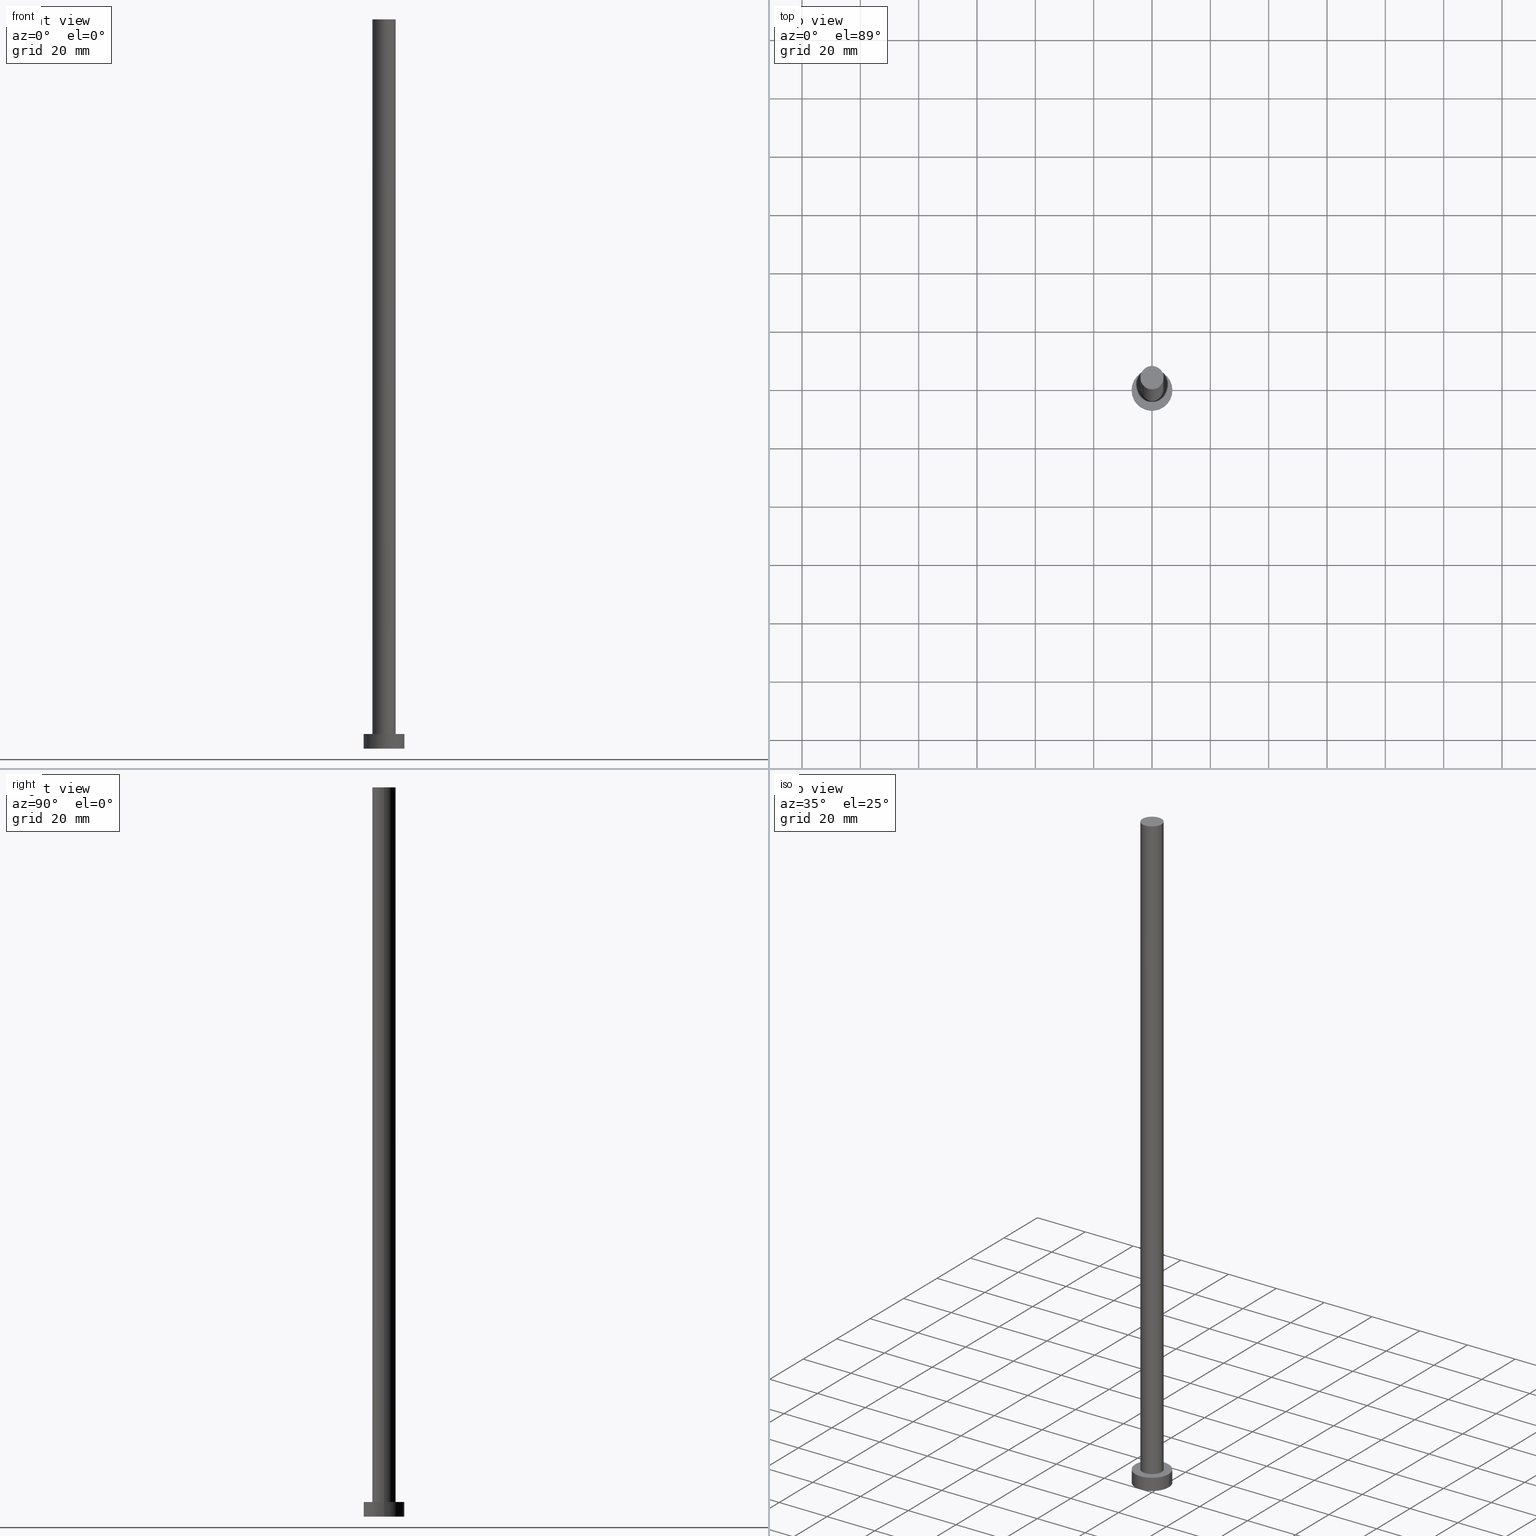
[diagram: canonical four-view strip — front | top / right | iso, engineering-drawing reading convention]
A machine part, canonical four-view strip (front | top / right | iso — engineering-drawing reading convention). The complete STEP part file that produces these views, byte-faithful:
ISO-10303-21;
HEADER;
FILE_DESCRIPTION (( 'STEP AP203' ),
    '1' );
FILE_NAME ('7587.STEP',
    '2023-02-13T12:57:03',
    ( '' ),
    ( '' ),
    'SwSTEP 2.0',
    'SolidWorks 2019',
    '' );
FILE_SCHEMA (( 'CONFIG_CONTROL_DESIGN' ));
ENDSEC;

DATA;
#1 = ORIENTED_EDGE ( 'NONE', *, *, #143, .T. ) ;
#2 = CC_DESIGN_PERSON_AND_ORGANIZATION_ASSIGNMENT ( #49, #165, ( #236 ) ) ;
#3 = PERSON_AND_ORGANIZATION ( #190, #5 ) ;
#4 = CIRCLE ( 'NONE', #170, 7.000000000000000000 ) ;
#5 = ORGANIZATION ( 'NEUR�EN�', 'NEUR�EN�', '' ) ;
#6 = PERSON_AND_ORGANIZATION ( #190, #5 ) ;
#7 = EDGE_CURVE ( 'NONE', #151, #180, #200, .T. ) ;
#8 = ORIENTED_EDGE ( 'NONE', *, *, #74, .T. ) ;
#9 = APPROVAL_ROLE ( '' ) ;
#10 = AXIS2_PLACEMENT_3D ( 'NONE', #136, #251, #158 ) ;
#11 = SHAPE_DEFINITION_REPRESENTATION ( #43, #80 ) ;
#12 = ORIENTED_EDGE ( 'NONE', *, *, #40, .T. ) ;
#13 = ORIENTED_EDGE ( 'NONE', *, *, #150, .F. ) ;
#14 = DIRECTION ( 'NONE',  ( -1.000000000000000000, 0.000000000000000000, 0.000000000000000000 ) ) ;
#15 = AXIS2_PLACEMENT_3D ( 'NONE', #64, #231, #177 ) ;
#16 = CARTESIAN_POINT ( 'NONE',  ( 0.000000000000000000, 0.000000000000000000, 250.0000000000000000 ) ) ;
#17 = AXIS2_PLACEMENT_3D ( 'NONE', #95, #210, #38 ) ;
#18 = CARTESIAN_POINT ( 'NONE',  ( 7.000000000000000000, 8.572527594031473190E-16, 5.000000000000000000 ) ) ;
#19 = FACE_OUTER_BOUND ( 'NONE', #145, .T. ) ;
#20 = CARTESIAN_POINT ( 'NONE',  ( -7.000000000000000000, 0.000000000000000000, 0.000000000000000000 ) ) ;
#21 = ADVANCED_FACE ( 'NONE', ( #252 ), #175, .T. ) ;
#22 = CALENDAR_DATE ( 2023, 13, 2 ) ;
#23 = CC_DESIGN_APPROVAL ( #37, ( #236 ) ) ;
#24 = DIRECTION ( 'NONE',  ( 1.000000000000000000, 0.000000000000000000, 0.000000000000000000 ) ) ;
#25 = CARTESIAN_POINT ( 'NONE',  ( 7.000000000000000000, 8.572527594031473190E-16, 0.000000000000000000 ) ) ;
#26 = VERTEX_POINT ( 'NONE', #20 ) ;
#27 = LOCAL_TIME ( 13, 57, 3.000000000000000000, #68 ) ;
#28 = DIRECTION ( 'NONE',  ( 0.000000000000000000, 0.000000000000000000, 1.000000000000000000 ) ) ;
#29 = DATE_TIME_ROLE ( 'creation_date' ) ;
#30 = EDGE_CURVE ( 'NONE', #154, #151, #65, .T. ) ;
#31 = DATE_TIME_ROLE ( 'classification_date' ) ;
#32 = DIRECTION ( 'NONE',  ( -0.000000000000000000, -0.000000000000000000, -1.000000000000000000 ) ) ;
#33 = CARTESIAN_POINT ( 'NONE',  ( 4.000000000000000000, 4.898587196589412829E-16, 250.0000000000000000 ) ) ;
#34 = CARTESIAN_POINT ( 'NONE',  ( 0.000000000000000000, 0.000000000000000000, 250.0000000000000000 ) ) ;
#35 = FACE_BOUND ( 'NONE', #50, .T. ) ;
#36 = AXIS2_PLACEMENT_3D ( 'NONE', #213, #174, #116 ) ;
#37 = APPROVAL ( #203, 'NEUR�EN�' ) ;
#38 = DIRECTION ( 'NONE',  ( 1.000000000000000000, 0.000000000000000000, 0.000000000000000000 ) ) ;
#39 = LOCAL_TIME ( 13, 57, 3.000000000000000000, #53 ) ;
#40 = EDGE_CURVE ( 'NONE', #178, #48, #98, .T. ) ;
#41 = DIRECTION ( 'NONE',  ( 1.000000000000000000, 0.000000000000000000, 0.000000000000000000 ) ) ;
#42 = CARTESIAN_POINT ( 'NONE',  ( 0.000000000000000000, 0.000000000000000000, 5.000000000000000000 ) ) ;
#43 = PRODUCT_DEFINITION_SHAPE ( 'NONE', 'NONE',  #73 ) ;
#44 = COORDINATED_UNIVERSAL_TIME_OFFSET ( 1, 0, .AHEAD. ) ;
#45 = EDGE_LOOP ( 'NONE', ( #75, #255 ) ) ;
#46 = AXIS2_PLACEMENT_3D ( 'NONE', #42, #197, #219 ) ;
#47 = UNCERTAINTY_MEASURE_WITH_UNIT (LENGTH_MEASURE( 1.000000000000000082E-05 ), #105, 'distance_accuracy_value', 'NONE');
#48 = VERTEX_POINT ( 'NONE', #113 ) ;
#49 = PERSON_AND_ORGANIZATION ( #190, #5 ) ;
#50 = EDGE_LOOP ( 'NONE', ( #77, #123 ) ) ;
#51 = EDGE_LOOP ( 'NONE', ( #57, #13, #8, #222 ) ) ;
#52 = MECHANICAL_CONTEXT ( 'NONE', #181, 'mechanical' ) ;
#53 = COORDINATED_UNIVERSAL_TIME_OFFSET ( 1, 0, .AHEAD. ) ;
#54 = DATE_AND_TIME ( #149, #99 ) ;
#55 = CARTESIAN_POINT ( 'NONE',  ( -4.000000000000000000, 0.000000000000000000, 250.0000000000000000 ) ) ;
#56 = DIRECTION ( 'NONE',  ( 0.000000000000000000, 0.000000000000000000, 1.000000000000000000 ) ) ;
#57 = ORIENTED_EDGE ( 'NONE', *, *, #129, .F. ) ;
#58 = CARTESIAN_POINT ( 'NONE',  ( 0.000000000000000000, 0.000000000000000000, 0.000000000000000000 ) ) ;
#59 = CARTESIAN_POINT ( 'NONE',  ( 0.000000000000000000, 0.000000000000000000, 5.000000000000000000 ) ) ;
#60 = DIRECTION ( 'NONE',  ( 1.000000000000000000, 0.000000000000000000, -0.000000000000000000 ) ) ;
#61 = ADVANCED_FACE ( 'NONE', ( #35, #230 ), #156, .T. ) ;
#62 = LINE ( 'NONE', #139, #238 ) ;
#63 = CIRCLE ( 'NONE', #141, 7.000000000000000000 ) ;
#64 = CARTESIAN_POINT ( 'NONE',  ( 0.000000000000000000, 0.000000000000000000, 0.000000000000000000 ) ) ;
#65 = LINE ( 'NONE', #137, #220 ) ;
#66 = CC_DESIGN_DATE_AND_TIME_ASSIGNMENT ( #127, #31, ( #192 ) ) ;
#67 = APPROVAL_STATUS ( 'not_yet_approved' ) ;
#68 = COORDINATED_UNIVERSAL_TIME_OFFSET ( 1, 0, .AHEAD. ) ;
#69 = ORIENTED_EDGE ( 'NONE', *, *, #74, .F. ) ;
#70 = CC_DESIGN_DATE_AND_TIME_ASSIGNMENT ( #54, #29, ( #73 ) ) ;
#71 =( GEOMETRIC_REPRESENTATION_CONTEXT ( 3 ) GLOBAL_UNCERTAINTY_ASSIGNED_CONTEXT ( ( #47 ) ) GLOBAL_UNIT_ASSIGNED_CONTEXT ( ( #105, #183, #179 ) ) REPRESENTATION_CONTEXT ( 'NONE', 'WORKASPACE' ) );
#72 = APPROVAL_STATUS ( 'not_yet_approved' ) ;
#73 = PRODUCT_DEFINITION ( 'NEZN�M�', '', #236, #91 ) ;
#74 = EDGE_CURVE ( 'NONE', #48, #26, #62, .T. ) ;
#75 = ORIENTED_EDGE ( 'NONE', *, *, #253, .T. ) ;
#76 = EDGE_LOOP ( 'NONE', ( #109, #184, #245, #1 ) ) ;
#77 = ORIENTED_EDGE ( 'NONE', *, *, #143, .F. ) ;
#78 = AXIS2_PLACEMENT_3D ( 'NONE', #34, #56, #110 ) ;
#79 = DIRECTION ( 'NONE',  ( -0.000000000000000000, -0.000000000000000000, -1.000000000000000000 ) ) ;
#80 = ADVANCED_BREP_SHAPE_REPRESENTATION ( '7587', ( #86, #212 ), #71 ) ;
#81 = PLANE ( 'NONE',  #15 ) ;
#82 = PERSON_AND_ORGANIZATION_ROLE ( 'design_owner' ) ;
#83 = APPROVAL_PERSON_ORGANIZATION ( #130, #37, #155 ) ;
#84 = PRODUCT ( '7587', '7587', '', ( #52 ) ) ;
#85 = FACE_OUTER_BOUND ( 'NONE', #45, .T. ) ;
#86 = MANIFOLD_SOLID_BREP ( 'P�idat vysunut�m3', #114 ) ;
#87 = EDGE_CURVE ( 'NONE', #26, #102, #4, .T. ) ;
#88 = CARTESIAN_POINT ( 'NONE',  ( 4.000000000000000000, 4.898587196589412829E-16, 5.000000000000000000 ) ) ;
#89 = APPROVAL_DATE_TIME ( #241, #37 ) ;
#90 = CALENDAR_DATE ( 2023, 13, 2 ) ;
#91 = DESIGN_CONTEXT ( 'detailed design', #233, 'design' ) ;
#92 = CARTESIAN_POINT ( 'NONE',  ( 0.000000000000000000, 0.000000000000000000, 5.000000000000000000 ) ) ;
#93 = ORIENTED_EDGE ( 'NONE', *, *, #7, .T. ) ;
#94 = DIRECTION ( 'NONE',  ( -1.000000000000000000, 0.000000000000000000, 0.000000000000000000 ) ) ;
#95 = CARTESIAN_POINT ( 'NONE',  ( 0.000000000000000000, 0.000000000000000000, 250.0000000000000000 ) ) ;
#96 = DIRECTION ( 'NONE',  ( -0.000000000000000000, -0.000000000000000000, -1.000000000000000000 ) ) ;
#97 = LINE ( 'NONE', #115, #249 ) ;
#98 = CIRCLE ( 'NONE', #211, 7.000000000000000000 ) ;
#99 = LOCAL_TIME ( 13, 57, 3.000000000000000000, #147 ) ;
#100 = ADVANCED_FACE ( 'NONE', ( #101 ), #221, .T. ) ;
#101 = FACE_OUTER_BOUND ( 'NONE', #132, .T. ) ;
#102 = VERTEX_POINT ( 'NONE', #25 ) ;
#103 = CIRCLE ( 'NONE', #201, 7.000000000000000000 ) ;
#104 = LOCAL_TIME ( 13, 57, 3.000000000000000000, #112 ) ;
#105 =( LENGTH_UNIT ( ) NAMED_UNIT ( * ) SI_UNIT ( .MILLI., .METRE. ) );
#106 = PERSON_AND_ORGANIZATION_ROLE ( 'classification_officer' ) ;
#107 = DIRECTION ( 'NONE',  ( 1.000000000000000000, 0.000000000000000000, 0.000000000000000000 ) ) ;
#108 = CALENDAR_DATE ( 2023, 13, 2 ) ;
#109 = ORIENTED_EDGE ( 'NONE', *, *, #30, .F. ) ;
#110 = DIRECTION ( 'NONE',  ( 1.000000000000000000, 0.000000000000000000, 0.000000000000000000 ) ) ;
#111 = AXIS2_PLACEMENT_3D ( 'NONE', #229, #189, #60 ) ;
#112 = COORDINATED_UNIVERSAL_TIME_OFFSET ( 1, 0, .AHEAD. ) ;
#113 = CARTESIAN_POINT ( 'NONE',  ( -7.000000000000000000, 0.000000000000000000, 5.000000000000000000 ) ) ;
#114 = CLOSED_SHELL ( 'NONE', ( #21, #100, #204, #61, #142, #246, #119 ) ) ;
#115 = CARTESIAN_POINT ( 'NONE',  ( 7.000000000000000000, 8.572527594031473190E-16, 5.000000000000000000 ) ) ;
#116 = DIRECTION ( 'NONE',  ( 1.000000000000000000, 0.000000000000000000, 0.000000000000000000 ) ) ;
#117 = APPROVAL_PERSON_ORGANIZATION ( #235, #182, #217 ) ;
#118 = CALENDAR_DATE ( 2023, 13, 2 ) ;
#119 = ADVANCED_FACE ( 'NONE', ( #85 ), #161, .T. ) ;
#120 = ORIENTED_EDGE ( 'NONE', *, *, #129, .T. ) ;
#121 = APPROVAL_PERSON_ORGANIZATION ( #186, #167, #9 ) ;
#122 = SECURITY_CLASSIFICATION_LEVEL ( 'unclassified' ) ;
#123 = ORIENTED_EDGE ( 'NONE', *, *, #7, .F. ) ;
#124 = AXIS2_PLACEMENT_3D ( 'NONE', #59, #28, #107 ) ;
#125 = CC_DESIGN_APPROVAL ( #167, ( #192 ) ) ;
#126 = ORIENTED_EDGE ( 'NONE', *, *, #243, .T. ) ;
#127 = DATE_AND_TIME ( #90, #39 ) ;
#128 = CC_DESIGN_PERSON_AND_ORGANIZATION_ASSIGNMENT ( #224, #248, ( #73 ) ) ;
#129 = EDGE_CURVE ( 'NONE', #178, #102, #97, .T. ) ;
#130 = PERSON_AND_ORGANIZATION ( #190, #5 ) ;
#131 = DIRECTION ( 'NONE',  ( -0.000000000000000000, -0.000000000000000000, -1.000000000000000000 ) ) ;
#132 = EDGE_LOOP ( 'NONE', ( #207, #120, #126, #69 ) ) ;
#133 = DIRECTION ( 'NONE',  ( 0.000000000000000000, 0.000000000000000000, 1.000000000000000000 ) ) ;
#134 = ORIENTED_EDGE ( 'NONE', *, *, #193, .F. ) ;
#135 = CC_DESIGN_PERSON_AND_ORGANIZATION_ASSIGNMENT ( #160, #82, ( #84 ) ) ;
#136 = CARTESIAN_POINT ( 'NONE',  ( 0.000000000000000000, 0.000000000000000000, 250.0000000000000000 ) ) ;
#137 = CARTESIAN_POINT ( 'NONE',  ( 4.000000000000000000, 4.898587196589412829E-16, 250.0000000000000000 ) ) ;
#138 = CYLINDRICAL_SURFACE ( 'NONE', #171, 7.000000000000000000 ) ;
#139 = CARTESIAN_POINT ( 'NONE',  ( -7.000000000000000000, 0.000000000000000000, 5.000000000000000000 ) ) ;
#140 = CIRCLE ( 'NONE', #17, 4.000000000000000000 ) ;
#141 = AXIS2_PLACEMENT_3D ( 'NONE', #58, #133, #205 ) ;
#142 = ADVANCED_FACE ( 'NONE', ( #19 ), #81, .F. ) ;
#143 = EDGE_CURVE ( 'NONE', #180, #151, #162, .T. ) ;
#144 = DIRECTION ( 'NONE',  ( 0.000000000000000000, 0.000000000000000000, 1.000000000000000000 ) ) ;
#145 = EDGE_LOOP ( 'NONE', ( #227, #218 ) ) ;
#146 = ORIENTED_EDGE ( 'NONE', *, *, #150, .T. ) ;
#147 = COORDINATED_UNIVERSAL_TIME_OFFSET ( 1, 0, .AHEAD. ) ;
#148 = VECTOR ( 'NONE', #131, 1000.000000000000000 ) ;
#149 = CALENDAR_DATE ( 2023, 13, 2 ) ;
#150 = EDGE_CURVE ( 'NONE', #48, #178, #103, .T. ) ;
#151 = VERTEX_POINT ( 'NONE', #88 ) ;
#152 = APPROVAL_DATE_TIME ( #169, #182 ) ;
#153 = APPROVAL_DATE_TIME ( #232, #167 ) ;
#154 = VERTEX_POINT ( 'NONE', #33 ) ;
#155 = APPROVAL_ROLE ( '' ) ;
#156 = PLANE ( 'NONE',  #111 ) ;
#157 = DIRECTION ( 'NONE',  ( 0.000000000000000000, 0.000000000000000000, 1.000000000000000000 ) ) ;
#158 = DIRECTION ( 'NONE',  ( -1.000000000000000000, 0.000000000000000000, 0.000000000000000000 ) ) ;
#159 = CARTESIAN_POINT ( 'NONE',  ( 0.000000000000000000, 0.000000000000000000, 0.000000000000000000 ) ) ;
#160 = PERSON_AND_ORGANIZATION ( #190, #5 ) ;
#161 = PLANE ( 'NONE',  #216 ) ;
#162 = CIRCLE ( 'NONE', #36, 4.000000000000000000 ) ;
#163 = EDGE_LOOP ( 'NONE', ( #198, #247, #93, #134 ) ) ;
#164 = EDGE_LOOP ( 'NONE', ( #146, #12 ) ) ;
#165 = PERSON_AND_ORGANIZATION_ROLE ( 'creator' ) ;
#166 = CC_DESIGN_SECURITY_CLASSIFICATION ( #192, ( #236 ) ) ;
#167 = APPROVAL ( #72, 'NEUR�EN�' ) ;
#168 = DIRECTION ( 'NONE',  ( 1.000000000000000000, 0.000000000000000000, 0.000000000000000000 ) ) ;
#169 = DATE_AND_TIME ( #118, #206 ) ;
#170 = AXIS2_PLACEMENT_3D ( 'NONE', #173, #237, #215 ) ;
#171 = AXIS2_PLACEMENT_3D ( 'NONE', #92, #209, #14 ) ;
#172 = PRODUCT_RELATED_PRODUCT_CATEGORY ( 'detail', '', ( #84 ) ) ;
#173 = CARTESIAN_POINT ( 'NONE',  ( 0.000000000000000000, 0.000000000000000000, 0.000000000000000000 ) ) ;
#174 = DIRECTION ( 'NONE',  ( 0.000000000000000000, 0.000000000000000000, 1.000000000000000000 ) ) ;
#175 = CYLINDRICAL_SURFACE ( 'NONE', #10, 4.000000000000000000 ) ;
#176 = CIRCLE ( 'NONE', #78, 4.000000000000000000 ) ;
#177 = DIRECTION ( 'NONE',  ( 1.000000000000000000, 0.000000000000000000, -0.000000000000000000 ) ) ;
#178 = VERTEX_POINT ( 'NONE', #18 ) ;
#179 =( NAMED_UNIT ( * ) SI_UNIT ( $, .STERADIAN. ) SOLID_ANGLE_UNIT ( ) );
#180 = VERTEX_POINT ( 'NONE', #250 ) ;
#181 = APPLICATION_CONTEXT ( 'configuration controlled 3d designs of mechanical parts and assemblies' ) ;
#182 = APPROVAL ( #67, 'NEUR�EN�' ) ;
#183 =( NAMED_UNIT ( * ) PLANE_ANGLE_UNIT ( ) SI_UNIT ( $, .RADIAN. ) );
#184 = ORIENTED_EDGE ( 'NONE', *, *, #253, .F. ) ;
#185 = PERSON_AND_ORGANIZATION_ROLE ( 'design_supplier' ) ;
#186 = PERSON_AND_ORGANIZATION ( #190, #5 ) ;
#187 = DIRECTION ( 'NONE',  ( 0.000000000000000000, 0.000000000000000000, 1.000000000000000000 ) ) ;
#188 = LINE ( 'NONE', #55, #148 ) ;
#189 = DIRECTION ( 'NONE',  ( 0.000000000000000000, 0.000000000000000000, 1.000000000000000000 ) ) ;
#190 = PERSON ( 'NEUR�EN�', 'NEUR�EN�', 'NEUR�EN�', ('NEUR�EN�'), ('NEUR�EN�'), ('NEUR�EN�') ) ;
#191 = CYLINDRICAL_SURFACE ( 'NONE', #239, 4.000000000000000000 ) ;
#192 = SECURITY_CLASSIFICATION ( '', '', #122 ) ;
#193 = EDGE_CURVE ( 'NONE', #202, #180, #188, .T. ) ;
#194 = DIRECTION ( 'NONE',  ( -0.000000000000000000, -0.000000000000000000, -1.000000000000000000 ) ) ;
#195 = CARTESIAN_POINT ( 'NONE',  ( 0.000000000000000000, 0.000000000000000000, 5.000000000000000000 ) ) ;
#196 = CC_DESIGN_APPROVAL ( #182, ( #73 ) ) ;
#197 = DIRECTION ( 'NONE',  ( -0.000000000000000000, -0.000000000000000000, -1.000000000000000000 ) ) ;
#198 = ORIENTED_EDGE ( 'NONE', *, *, #240, .F. ) ;
#199 = CC_DESIGN_PERSON_AND_ORGANIZATION_ASSIGNMENT ( #6, #106, ( #192 ) ) ;
#200 = CIRCLE ( 'NONE', #124, 4.000000000000000000 ) ;
#201 = AXIS2_PLACEMENT_3D ( 'NONE', #254, #144, #41 ) ;
#202 = VERTEX_POINT ( 'NONE', #242 ) ;
#203 = APPROVAL_STATUS ( 'not_yet_approved' ) ;
#204 = ADVANCED_FACE ( 'NONE', ( #225 ), #138, .T. ) ;
#205 = DIRECTION ( 'NONE',  ( 1.000000000000000000, 0.000000000000000000, 0.000000000000000000 ) ) ;
#206 = LOCAL_TIME ( 13, 57, 3.000000000000000000, #44 ) ;
#207 = ORIENTED_EDGE ( 'NONE', *, *, #40, .F. ) ;
#208 = DIRECTION ( 'NONE',  ( 1.000000000000000000, 0.000000000000000000, -0.000000000000000000 ) ) ;
#209 = DIRECTION ( 'NONE',  ( -0.000000000000000000, -0.000000000000000000, -1.000000000000000000 ) ) ;
#210 = DIRECTION ( 'NONE',  ( 0.000000000000000000, 0.000000000000000000, 1.000000000000000000 ) ) ;
#211 = AXIS2_PLACEMENT_3D ( 'NONE', #195, #157, #24 ) ;
#212 = AXIS2_PLACEMENT_3D ( 'NONE', #159, #187, #168 ) ;
#213 = CARTESIAN_POINT ( 'NONE',  ( 0.000000000000000000, 0.000000000000000000, 5.000000000000000000 ) ) ;
#214 = APPLICATION_PROTOCOL_DEFINITION ( 'international standard', 'config_control_design', 1994, #233 ) ;
#215 = DIRECTION ( 'NONE',  ( 1.000000000000000000, 0.000000000000000000, 0.000000000000000000 ) ) ;
#216 = AXIS2_PLACEMENT_3D ( 'NONE', #234, #226, #208 ) ;
#217 = APPROVAL_ROLE ( '' ) ;
#218 = ORIENTED_EDGE ( 'NONE', *, *, #243, .F. ) ;
#219 = DIRECTION ( 'NONE',  ( -1.000000000000000000, 0.000000000000000000, 0.000000000000000000 ) ) ;
#220 = VECTOR ( 'NONE', #79, 1000.000000000000000 ) ;
#221 = CYLINDRICAL_SURFACE ( 'NONE', #46, 7.000000000000000000 ) ;
#222 = ORIENTED_EDGE ( 'NONE', *, *, #87, .T. ) ;
#223 = APPLICATION_PROTOCOL_DEFINITION ( 'international standard', 'config_control_design', 1994, #181 ) ;
#224 = PERSON_AND_ORGANIZATION ( #190, #5 ) ;
#225 = FACE_OUTER_BOUND ( 'NONE', #51, .T. ) ;
#226 = DIRECTION ( 'NONE',  ( 0.000000000000000000, 0.000000000000000000, 1.000000000000000000 ) ) ;
#227 = ORIENTED_EDGE ( 'NONE', *, *, #87, .F. ) ;
#228 = FACE_OUTER_BOUND ( 'NONE', #76, .T. ) ;
#229 = CARTESIAN_POINT ( 'NONE',  ( 0.000000000000000000, 0.000000000000000000, 5.000000000000000000 ) ) ;
#230 = FACE_OUTER_BOUND ( 'NONE', #164, .T. ) ;
#231 = DIRECTION ( 'NONE',  ( 0.000000000000000000, 0.000000000000000000, 1.000000000000000000 ) ) ;
#232 = DATE_AND_TIME ( #22, #27 ) ;
#233 = APPLICATION_CONTEXT ( 'configuration controlled 3d designs of mechanical parts and assemblies' ) ;
#234 = CARTESIAN_POINT ( 'NONE',  ( 0.000000000000000000, 0.000000000000000000, 250.0000000000000000 ) ) ;
#235 = PERSON_AND_ORGANIZATION ( #190, #5 ) ;
#236 = PRODUCT_DEFINITION_FORMATION_WITH_SPECIFIED_SOURCE ( 'LIBOVOLN�', '', #84, .NOT_KNOWN. ) ;
#237 = DIRECTION ( 'NONE',  ( 0.000000000000000000, 0.000000000000000000, 1.000000000000000000 ) ) ;
#238 = VECTOR ( 'NONE', #96, 1000.000000000000000 ) ;
#239 = AXIS2_PLACEMENT_3D ( 'NONE', #16, #32, #94 ) ;
#240 = EDGE_CURVE ( 'NONE', #154, #202, #176, .T. ) ;
#241 = DATE_AND_TIME ( #108, #104 ) ;
#242 = CARTESIAN_POINT ( 'NONE',  ( -4.000000000000000000, 0.000000000000000000, 250.0000000000000000 ) ) ;
#243 = EDGE_CURVE ( 'NONE', #102, #26, #63, .T. ) ;
#244 = CC_DESIGN_PERSON_AND_ORGANIZATION_ASSIGNMENT ( #3, #185, ( #236 ) ) ;
#245 = ORIENTED_EDGE ( 'NONE', *, *, #193, .T. ) ;
#246 = ADVANCED_FACE ( 'NONE', ( #228 ), #191, .T. ) ;
#247 = ORIENTED_EDGE ( 'NONE', *, *, #30, .T. ) ;
#248 = PERSON_AND_ORGANIZATION_ROLE ( 'creator' ) ;
#249 = VECTOR ( 'NONE', #194, 1000.000000000000000 ) ;
#250 = CARTESIAN_POINT ( 'NONE',  ( -4.000000000000000000, 0.000000000000000000, 5.000000000000000000 ) ) ;
#251 = DIRECTION ( 'NONE',  ( -0.000000000000000000, -0.000000000000000000, -1.000000000000000000 ) ) ;
#252 = FACE_OUTER_BOUND ( 'NONE', #163, .T. ) ;
#253 = EDGE_CURVE ( 'NONE', #202, #154, #140, .T. ) ;
#254 = CARTESIAN_POINT ( 'NONE',  ( 0.000000000000000000, 0.000000000000000000, 5.000000000000000000 ) ) ;
#255 = ORIENTED_EDGE ( 'NONE', *, *, #240, .T. ) ;
ENDSEC;
END-ISO-10303-21;
